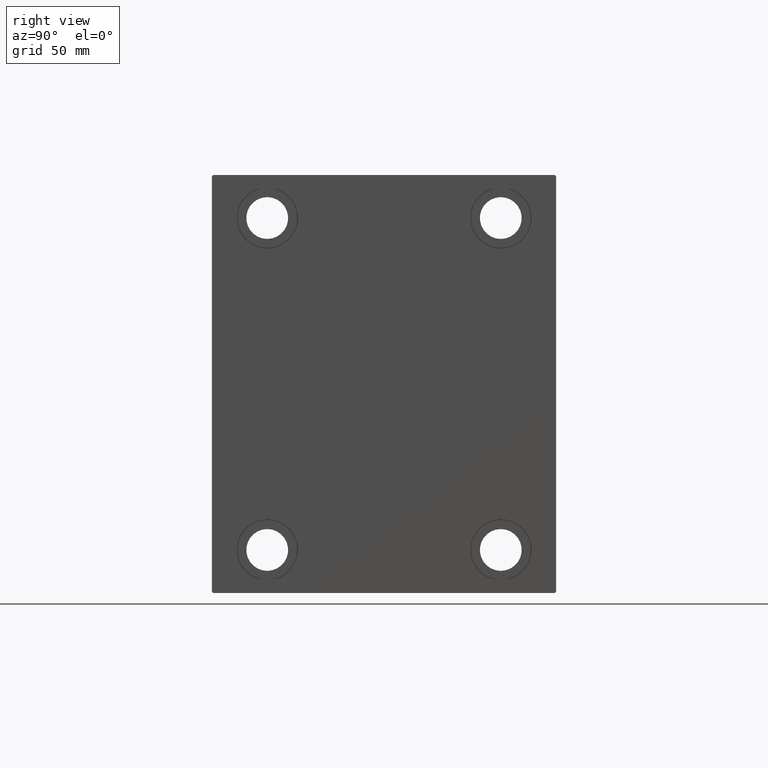
[diagram: clean part render]
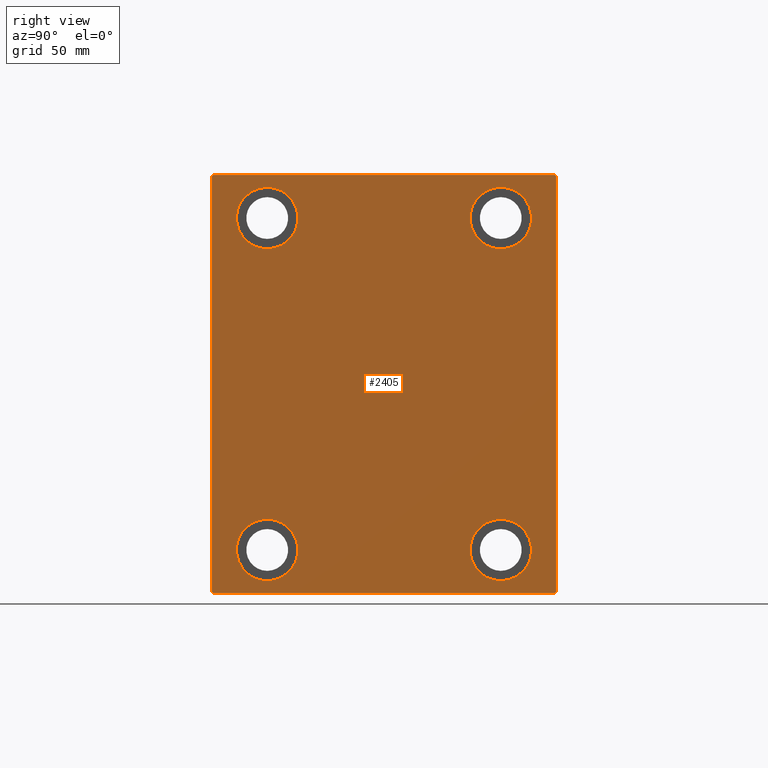
[diagram: same view with one face highlighted and labeled with its STEP entity id]
A machine part, right view. The second image highlights one B-rep face of the part: STEP entity #2405.
In plain terms, the highlighted planar face has unit normal (1, 0, 0).
Its self-contained STEP definition (entity closure, byte-faithful):
#78 = DIRECTION ( 'NONE',  ( -1.000000000000000000, -0.000000000000000000, -0.000000000000000000 ) ) ;
#444 = DIRECTION ( 'NONE',  ( -0.000000000000000000, 0.7071067811865574537, -0.7071067811865376918 ) ) ;
#1028 = LINE ( 'NONE', #27584, #4235 ) ;
#2214 = ORIENTED_EDGE ( 'NONE', *, *, #30214, .T. ) ;
#2311 = EDGE_LOOP ( 'NONE', ( #2214, #30640 ) ) ;
#2405 = ADVANCED_FACE ( 'NONE', ( #32815, #43513, #35734, #19438, #12978 ), #29254, .T. ) ;
#3672 = EDGE_CURVE ( 'NONE', #5486, #39441, #5537, .T. ) ;
#3701 = DIRECTION ( 'NONE',  ( 0.000000000000000000, -0.7071067811865279218, -0.7071067811865672237 ) ) ;
#4235 = VECTOR ( 'NONE', #34696, 1000.000000000000000 ) ;
#4590 = VECTOR ( 'NONE', #7241, 1000.000000000000000 ) ;
#4873 = CARTESIAN_POINT ( 'NONE',  ( 185.0000000000000000, 77.25000000000099476, 77.24999999999884892 ) ) ;
#4979 = EDGE_CURVE ( 'NONE', #12150, #41249, #13925, .T. ) ;
#5132 = ORIENTED_EDGE ( 'NONE', *, *, #20031, .T. ) ;
#5372 = CIRCLE ( 'NONE', #16046, 12.50000000000001066 ) ;
#5486 = VERTEX_POINT ( 'NONE', #37686 ) ;
#5537 = LINE ( 'NONE', #4873, #39550 ) ;
#5673 = CARTESIAN_POINT ( 'NONE',  ( 185.0000000000000000, 47.50000000000000711, -67.50000000000000000 ) ) ;
#5787 = CARTESIAN_POINT ( 'NONE',  ( 185.0000000000000000, -47.49999999999999289, -67.50000000000000000 ) ) ;
#6059 = VERTEX_POINT ( 'NONE', #43301 ) ;
#6219 = CARTESIAN_POINT ( 'NONE',  ( 185.0000000000000000, -47.49999999999999289, -55.00000000000000711 ) ) ;
#7241 = DIRECTION ( 'NONE',  ( 0.000000000000000000, 1.000000000000000000, 9.912705577010325549E-17 ) ) ;
#7837 = EDGE_CURVE ( 'NONE', #42665, #38782, #5372, .T. ) ;
#8375 = CARTESIAN_POINT ( 'NONE',  ( 185.0000000000000000, 69.50000000000007105, -85.00000000000001421 ) ) ;
#8515 = VERTEX_POINT ( 'NONE', #42547 ) ;
#8572 = ORIENTED_EDGE ( 'NONE', *, *, #35724, .T. ) ;
#8769 = DIRECTION ( 'NONE',  ( 0.000000000000000000, 0.000000000000000000, -1.000000000000000000 ) ) ;
#8889 = VERTEX_POINT ( 'NONE', #28226 ) ;
#8945 = CARTESIAN_POINT ( 'NONE',  ( 185.0000000000000000, 47.50000000000000711, 55.00000000000000000 ) ) ;
#9251 = CIRCLE ( 'NONE', #16356, 12.50000000000001066 ) ;
#9408 = DIRECTION ( 'NONE',  ( -1.000000000000000000, -0.000000000000000000, -0.000000000000000000 ) ) ;
#10126 = EDGE_LOOP ( 'NONE', ( #20186, #42426 ) ) ;
#10394 = EDGE_CURVE ( 'NONE', #20121, #12150, #28076, .T. ) ;
#10756 = DIRECTION ( 'NONE',  ( 0.000000000000000000, 0.000000000000000000, 1.000000000000000000 ) ) ;
#10799 = CIRCLE ( 'NONE', #20046, 12.49999999999999645 ) ;
#11491 = DIRECTION ( 'NONE',  ( -1.000000000000000000, -0.000000000000000000, -0.000000000000000000 ) ) ;
#12113 = DIRECTION ( 'NONE',  ( 1.000000000000000000, 0.000000000000000000, 0.000000000000000000 ) ) ;
#12150 = VERTEX_POINT ( 'NONE', #41819 ) ;
#12793 = CARTESIAN_POINT ( 'NONE',  ( 185.0000000000000000, -47.49999999999997868, 67.50000000000000000 ) ) ;
#12865 = AXIS2_PLACEMENT_3D ( 'NONE', #30606, #78, #13683 ) ;
#12945 = AXIS2_PLACEMENT_3D ( 'NONE', #32366, #12113, #8769 ) ;
#12968 = LINE ( 'NONE', #39950, #27151 ) ;
#12978 = FACE_OUTER_BOUND ( 'NONE', #33954, .T. ) ;
#13683 = DIRECTION ( 'NONE',  ( 0.000000000000000000, 0.000000000000000000, 1.000000000000000000 ) ) ;
#13925 = LINE ( 'NONE', #17489, #4590 ) ;
#13968 = ORIENTED_EDGE ( 'NONE', *, *, #4979, .T. ) ;
#14822 = CARTESIAN_POINT ( 'NONE',  ( 185.0000000000000000, -69.49999999999998579, 84.99999999999998579 ) ) ;
#15177 = EDGE_LOOP ( 'NONE', ( #24897, #34878 ) ) ;
#15588 = ORIENTED_EDGE ( 'NONE', *, *, #27271, .T. ) ;
#16046 = AXIS2_PLACEMENT_3D ( 'NONE', #26688, #22900, #36510 ) ;
#16265 = VECTOR ( 'NONE', #3701, 1000.000000000000000 ) ;
#16356 = AXIS2_PLACEMENT_3D ( 'NONE', #12793, #19692, #39988 ) ;
#16635 = EDGE_CURVE ( 'NONE', #32518, #24720, #36935, .T. ) ;
#17489 = CARTESIAN_POINT ( 'NONE',  ( 185.0000000000000000, -69.99999999999998579, -85.00000000000002842 ) ) ;
#17790 = CARTESIAN_POINT ( 'NONE',  ( 185.0000000000000000, 70.00000000000002842, -84.50000000000004263 ) ) ;
#18144 = CARTESIAN_POINT ( 'NONE',  ( 185.0000000000000000, 69.50000000000004263, 85.00000000000000000 ) ) ;
#18468 = VECTOR ( 'NONE', #42597, 999.9999999999998863 ) ;
#18722 = EDGE_CURVE ( 'NONE', #41249, #42070, #32324, .T. ) ;
#19254 = DIRECTION ( 'NONE',  ( -1.000000000000000000, -0.000000000000000000, -0.000000000000000000 ) ) ;
#19438 = FACE_BOUND ( 'NONE', #10126, .T. ) ;
#19692 = DIRECTION ( 'NONE',  ( -1.000000000000000000, -0.000000000000000000, -0.000000000000000000 ) ) ;
#20031 = EDGE_CURVE ( 'NONE', #24720, #20121, #1028, .T. ) ;
#20046 = AXIS2_PLACEMENT_3D ( 'NONE', #5673, #19254, #28844 ) ;
#20121 = VERTEX_POINT ( 'NONE', #30419 ) ;
#20186 = ORIENTED_EDGE ( 'NONE', *, *, #30764, .T. ) ;
#20321 = EDGE_CURVE ( 'NONE', #20684, #6059, #36201, .T. ) ;
#20493 = LINE ( 'NONE', #30937, #34391 ) ;
#20684 = VERTEX_POINT ( 'NONE', #6219 ) ;
#20776 = DIRECTION ( 'NONE',  ( -1.000000000000000000, -0.000000000000000000, -0.000000000000000000 ) ) ;
#22900 = DIRECTION ( 'NONE',  ( -1.000000000000000000, -0.000000000000000000, -0.000000000000000000 ) ) ;
#23141 = DIRECTION ( 'NONE',  ( 0.000000000000000000, 0.000000000000000000, 1.000000000000000000 ) ) ;
#23264 = CARTESIAN_POINT ( 'NONE',  ( 185.0000000000000000, 47.50000000000000711, 80.00000000000001421 ) ) ;
#23284 = VERTEX_POINT ( 'NONE', #26213 ) ;
#23450 = ORIENTED_EDGE ( 'NONE', *, *, #3672, .T. ) ;
#24698 = EDGE_CURVE ( 'NONE', #8515, #23284, #9251, .T. ) ;
#24720 = VERTEX_POINT ( 'NONE', #34378 ) ;
#24897 = ORIENTED_EDGE ( 'NONE', *, *, #38399, .T. ) ;
#25895 = CARTESIAN_POINT ( 'NONE',  ( 185.0000000000000000, -47.49999999999999289, -67.50000000000000000 ) ) ;
#25988 = CARTESIAN_POINT ( 'NONE',  ( 185.0000000000000000, 47.50000000000000711, -55.00000000000000711 ) ) ;
#26072 = AXIS2_PLACEMENT_3D ( 'NONE', #41407, #11491, #38677 ) ;
#26213 = CARTESIAN_POINT ( 'NONE',  ( 185.0000000000000000, -47.49999999999997868, 55.00000000000000000 ) ) ;
#26688 = CARTESIAN_POINT ( 'NONE',  ( 185.0000000000000000, 47.50000000000000711, 67.50000000000000000 ) ) ;
#27151 = VECTOR ( 'NONE', #30105, 1000.000000000000000 ) ;
#27271 = EDGE_CURVE ( 'NONE', #23284, #8515, #31359, .T. ) ;
#27584 = CARTESIAN_POINT ( 'NONE',  ( 185.0000000000000000, -69.99999999999998579, 84.99999999999998579 ) ) ;
#27655 = AXIS2_PLACEMENT_3D ( 'NONE', #25895, #9408, #29664 ) ;
#28076 = LINE ( 'NONE', #30541, #30329 ) ;
#28226 = CARTESIAN_POINT ( 'NONE',  ( 185.0000000000000000, 47.50000000000000711, -80.00000000000000000 ) ) ;
#28636 = EDGE_LOOP ( 'NONE', ( #15588, #30862 ) ) ;
#28844 = DIRECTION ( 'NONE',  ( 0.000000000000000000, 0.000000000000000000, 1.000000000000000000 ) ) ;
#28931 = DIRECTION ( 'NONE',  ( -0.000000000000000000, -0.7071067811865376918, 0.7071067811865573427 ) ) ;
#29214 = CARTESIAN_POINT ( 'NONE',  ( 185.0000000000000000, 77.25000000000100897, -77.24999999999886313 ) ) ;
#29254 = PLANE ( 'NONE',  #12945 ) ;
#29328 = EDGE_CURVE ( 'NONE', #42070, #5486, #12968, .T. ) ;
#29664 = DIRECTION ( 'NONE',  ( 0.000000000000000000, 0.000000000000000000, 1.000000000000000000 ) ) ;
#30105 = DIRECTION ( 'NONE',  ( 0.000000000000000000, -8.163404592832031500E-17, 1.000000000000000000 ) ) ;
#30214 = EDGE_CURVE ( 'NONE', #8889, #37172, #10799, .T. ) ;
#30329 = VECTOR ( 'NONE', #444, 999.9999999999998863 ) ;
#30419 = CARTESIAN_POINT ( 'NONE',  ( 185.0000000000000000, -69.99999999999998579, -84.49999999999998579 ) ) ;
#30541 = CARTESIAN_POINT ( 'NONE',  ( 185.0000000000000000, -77.24999999999901945, -77.25000000000116529 ) ) ;
#30583 = ORIENTED_EDGE ( 'NONE', *, *, #16635, .T. ) ;
#30606 = CARTESIAN_POINT ( 'NONE',  ( 185.0000000000000000, -47.49999999999997868, 67.50000000000000000 ) ) ;
#30640 = ORIENTED_EDGE ( 'NONE', *, *, #40069, .T. ) ;
#30764 = EDGE_CURVE ( 'NONE', #6059, #20684, #42865, .T. ) ;
#30862 = ORIENTED_EDGE ( 'NONE', *, *, #24698, .T. ) ;
#30937 = CARTESIAN_POINT ( 'NONE',  ( 185.0000000000000000, 70.00000000000001421, 85.00000000000000000 ) ) ;
#31359 = CIRCLE ( 'NONE', #12865, 12.50000000000001066 ) ;
#32324 = LINE ( 'NONE', #29214, #18468 ) ;
#32366 = CARTESIAN_POINT ( 'NONE',  ( 185.0000000000000000, 0.000000000000000000, 0.000000000000000000 ) ) ;
#32518 = VERTEX_POINT ( 'NONE', #14822 ) ;
#32815 = FACE_BOUND ( 'NONE', #2311, .T. ) ;
#33954 = EDGE_LOOP ( 'NONE', ( #8572, #30583, #5132, #39771, #13968, #40147, #44048, #23450 ) ) ;
#34090 = DIRECTION ( 'NONE',  ( 0.000000000000000000, -1.000000000000000000, -9.912705577010325549E-17 ) ) ;
#34378 = CARTESIAN_POINT ( 'NONE',  ( 185.0000000000000000, -69.99999999999998579, 84.49999999999995737 ) ) ;
#34391 = VECTOR ( 'NONE', #34090, 1000.000000000000000 ) ;
#34696 = DIRECTION ( 'NONE',  ( 0.000000000000000000, 0.000000000000000000, -1.000000000000000000 ) ) ;
#34878 = ORIENTED_EDGE ( 'NONE', *, *, #7837, .T. ) ;
#35724 = EDGE_CURVE ( 'NONE', #39441, #32518, #20493, .T. ) ;
#35734 = FACE_BOUND ( 'NONE', #15177, .T. ) ;
#36201 = CIRCLE ( 'NONE', #27655, 12.49999999999999645 ) ;
#36510 = DIRECTION ( 'NONE',  ( 0.000000000000000000, 0.000000000000000000, 1.000000000000000000 ) ) ;
#36935 = LINE ( 'NONE', #40941, #16265 ) ;
#37172 = VERTEX_POINT ( 'NONE', #25988 ) ;
#37409 = CIRCLE ( 'NONE', #41690, 12.50000000000001066 ) ;
#37505 = CARTESIAN_POINT ( 'NONE',  ( 185.0000000000000000, 47.50000000000000711, 67.50000000000000000 ) ) ;
#37686 = CARTESIAN_POINT ( 'NONE',  ( 185.0000000000000000, 70.00000000000001421, 84.50000000000001421 ) ) ;
#37872 = AXIS2_PLACEMENT_3D ( 'NONE', #5787, #40106, #23141 ) ;
#38399 = EDGE_CURVE ( 'NONE', #38782, #42665, #37409, .T. ) ;
#38677 = DIRECTION ( 'NONE',  ( 0.000000000000000000, 0.000000000000000000, 1.000000000000000000 ) ) ;
#38782 = VERTEX_POINT ( 'NONE', #8945 ) ;
#39441 = VERTEX_POINT ( 'NONE', #18144 ) ;
#39550 = VECTOR ( 'NONE', #28931, 1000.000000000000114 ) ;
#39771 = ORIENTED_EDGE ( 'NONE', *, *, #10394, .T. ) ;
#39950 = CARTESIAN_POINT ( 'NONE',  ( 185.0000000000000000, 70.00000000000002842, -85.00000000000001421 ) ) ;
#39988 = DIRECTION ( 'NONE',  ( 0.000000000000000000, 0.000000000000000000, 1.000000000000000000 ) ) ;
#40069 = EDGE_CURVE ( 'NONE', #37172, #8889, #40337, .T. ) ;
#40106 = DIRECTION ( 'NONE',  ( -1.000000000000000000, -0.000000000000000000, -0.000000000000000000 ) ) ;
#40147 = ORIENTED_EDGE ( 'NONE', *, *, #18722, .T. ) ;
#40337 = CIRCLE ( 'NONE', #26072, 12.49999999999999645 ) ;
#40941 = CARTESIAN_POINT ( 'NONE',  ( 185.0000000000000000, -77.25000000000191847, 77.24999999999761258 ) ) ;
#41249 = VERTEX_POINT ( 'NONE', #8375 ) ;
#41407 = CARTESIAN_POINT ( 'NONE',  ( 185.0000000000000000, 47.50000000000000711, -67.50000000000000000 ) ) ;
#41690 = AXIS2_PLACEMENT_3D ( 'NONE', #37505, #20776, #10756 ) ;
#41819 = CARTESIAN_POINT ( 'NONE',  ( 185.0000000000000000, -69.49999999999994316, -85.00000000000002842 ) ) ;
#42070 = VERTEX_POINT ( 'NONE', #17790 ) ;
#42426 = ORIENTED_EDGE ( 'NONE', *, *, #20321, .T. ) ;
#42547 = CARTESIAN_POINT ( 'NONE',  ( 185.0000000000000000, -47.49999999999997868, 80.00000000000001421 ) ) ;
#42597 = DIRECTION ( 'NONE',  ( -0.000000000000000000, 0.7071067811865376918, 0.7071067811865574537 ) ) ;
#42665 = VERTEX_POINT ( 'NONE', #23264 ) ;
#42865 = CIRCLE ( 'NONE', #37872, 12.49999999999999645 ) ;
#43301 = CARTESIAN_POINT ( 'NONE',  ( 185.0000000000000000, -47.49999999999999289, -80.00000000000000000 ) ) ;
#43513 = FACE_BOUND ( 'NONE', #28636, .T. ) ;
#44048 = ORIENTED_EDGE ( 'NONE', *, *, #29328, .T. ) ;